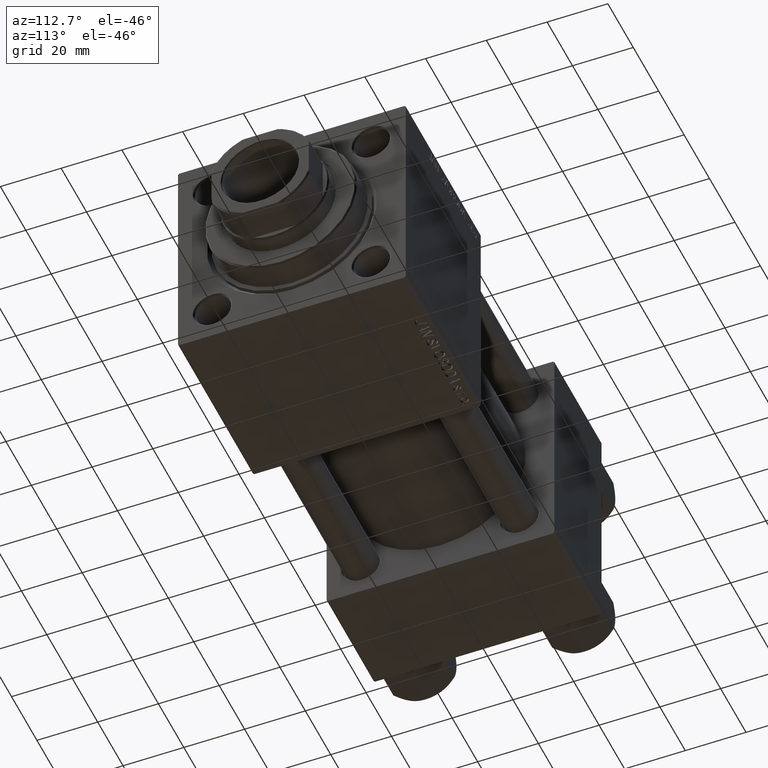
[diagram: clean part render]
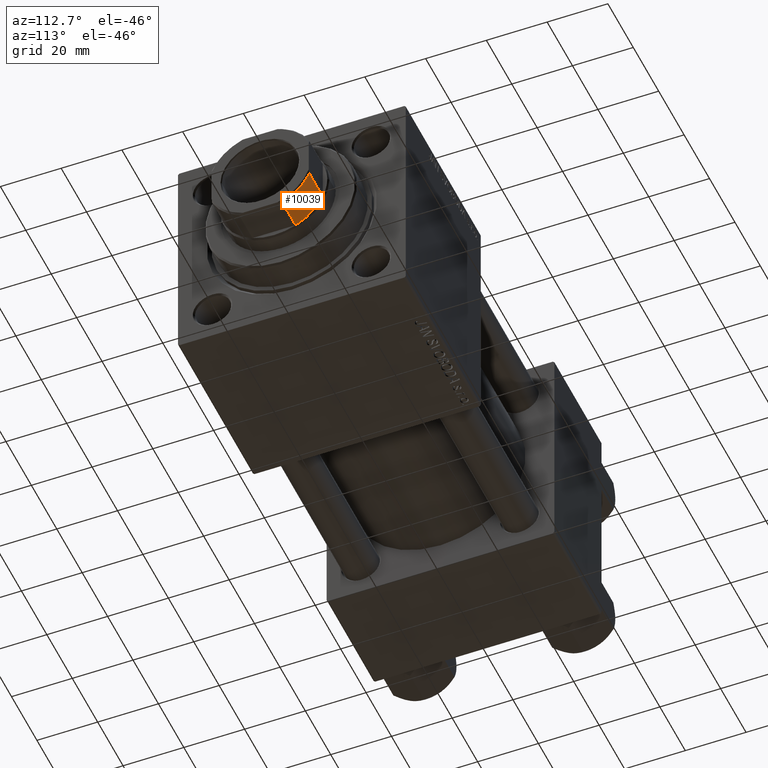
[diagram: same view with one face highlighted and labeled with its STEP entity id]
A machine part, auxiliary view. The second image highlights one B-rep face of the part: STEP entity #10039.
In plain terms, the highlighted cylindrical surface (partial cylindrical patch) has radius 17.5 mm, axis along (1, 0, 0).
Its self-contained STEP definition (entity closure, byte-faithful):
#1638 = CARTESIAN_POINT ( 'NONE',  ( -7.088723439378919799, 16.00000000000000000, 131.0000000000000284 ) ) ;
#1807 = FACE_OUTER_BOUND ( 'NONE', #7149, .T. ) ;
#3034 = CARTESIAN_POINT ( 'NONE',  ( 0.000000000000000000, 0.000000000000000000, 141.5000000000000284 ) ) ;
#3315 = CARTESIAN_POINT ( 'NONE',  ( 0.000000000000000000, 0.000000000000000000, 131.0000000000000000 ) ) ;
#4011 = VECTOR ( 'NONE', #17727, 1000.000000000000000 ) ;
#4863 = CARTESIAN_POINT ( 'NONE',  ( 0.000000000000000000, 0.000000000000000000, -0.001000000000001000089 ) ) ;
#5015 = CIRCLE ( 'NONE', #33956, 17.50000000000000000 ) ;
#6616 = LINE ( 'NONE', #18763, #12979 ) ;
#6832 = DIRECTION ( 'NONE',  ( 1.000000000000000000, 1.776356839400250465E-15, 0.000000000000000000 ) ) ;
#7149 = EDGE_LOOP ( 'NONE', ( #25314, #32146, #15361, #39263 ) ) ;
#10039 = ADVANCED_FACE ( 'NONE', ( #1807 ), #20557, .T. ) ;
#11125 = DIRECTION ( 'NONE',  ( -0.000000000000000000, -0.000000000000000000, -1.000000000000000000 ) ) ;
#12478 = VERTEX_POINT ( 'NONE', #33604 ) ;
#12979 = VECTOR ( 'NONE', #33493, 1000.000000000000000 ) ;
#15361 = ORIENTED_EDGE ( 'NONE', *, *, #34333, .F. ) ;
#17018 = DIRECTION ( 'NONE',  ( 1.000000000000000000, 0.000000000000000000, 0.000000000000000000 ) ) ;
#17049 = VERTEX_POINT ( 'NONE', #20951 ) ;
#17259 = DIRECTION ( 'NONE',  ( -0.000000000000000000, -0.000000000000000000, 1.000000000000000000 ) ) ;
#17727 = DIRECTION ( 'NONE',  ( -0.000000000000000000, -0.000000000000000000, 1.000000000000000000 ) ) ;
#17797 = CARTESIAN_POINT ( 'NONE',  ( -15.99999999999999645, 7.088723439378926905, 131.0000000000000284 ) ) ;
#18763 = CARTESIAN_POINT ( 'NONE',  ( -15.99999999999999645, 7.088723439378923352, -0.001000000000001000089 ) ) ;
#20557 = CYLINDRICAL_SURFACE ( 'NONE', #37920, 17.50000000000000000 ) ;
#20951 = CARTESIAN_POINT ( 'NONE',  ( -15.99999999999999645, 7.088723439378923352, 141.5000000000000284 ) ) ;
#21424 = EDGE_CURVE ( 'NONE', #41833, #49369, #30313, .T. ) ;
#23075 = DIRECTION ( 'NONE',  ( 1.000000000000000000, 0.000000000000000000, 0.000000000000000000 ) ) ;
#25314 = ORIENTED_EDGE ( 'NONE', *, *, #47879, .T. ) ;
#29893 = LINE ( 'NONE', #44896, #4011 ) ;
#30313 = CIRCLE ( 'NONE', #31161, 17.50000000000003908 ) ;
#31161 = AXIS2_PLACEMENT_3D ( 'NONE', #3315, #41883, #23075 ) ;
#32146 = ORIENTED_EDGE ( 'NONE', *, *, #44308, .T. ) ;
#33493 = DIRECTION ( 'NONE',  ( -0.000000000000000000, -0.000000000000000000, 1.000000000000000000 ) ) ;
#33604 = CARTESIAN_POINT ( 'NONE',  ( -7.088723439378915359, 16.00000000000000000, 141.5000000000000284 ) ) ;
#33956 = AXIS2_PLACEMENT_3D ( 'NONE', #3034, #11125, #6832 ) ;
#34333 = EDGE_CURVE ( 'NONE', #41833, #12478, #29893, .T. ) ;
#37920 = AXIS2_PLACEMENT_3D ( 'NONE', #4863, #17259, #17018 ) ;
#39263 = ORIENTED_EDGE ( 'NONE', *, *, #21424, .T. ) ;
#41833 = VERTEX_POINT ( 'NONE', #1638 ) ;
#41883 = DIRECTION ( 'NONE',  ( 0.000000000000000000, 0.000000000000000000, 1.000000000000000000 ) ) ;
#44308 = EDGE_CURVE ( 'NONE', #17049, #12478, #5015, .T. ) ;
#44896 = CARTESIAN_POINT ( 'NONE',  ( -7.088723439378915359, 16.00000000000000000, -0.001000000000001000089 ) ) ;
#47879 = EDGE_CURVE ( 'NONE', #49369, #17049, #6616, .T. ) ;
#49369 = VERTEX_POINT ( 'NONE', #17797 ) ;